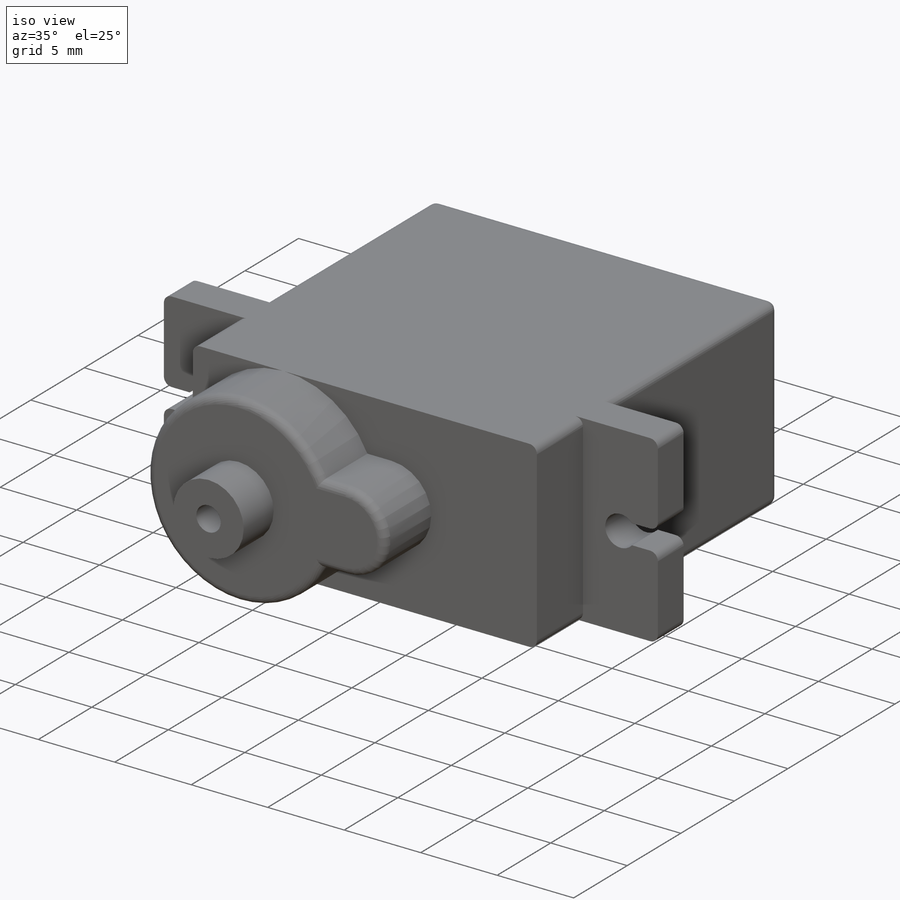
[diagram: iso view]
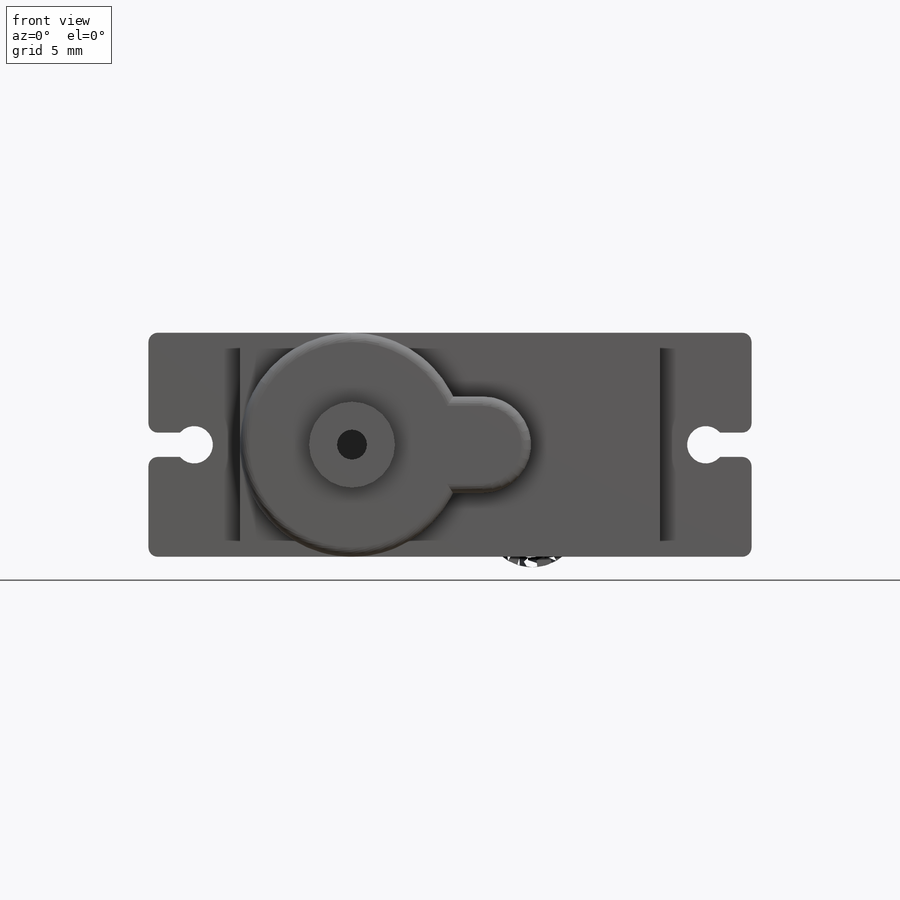
[diagram: front view]
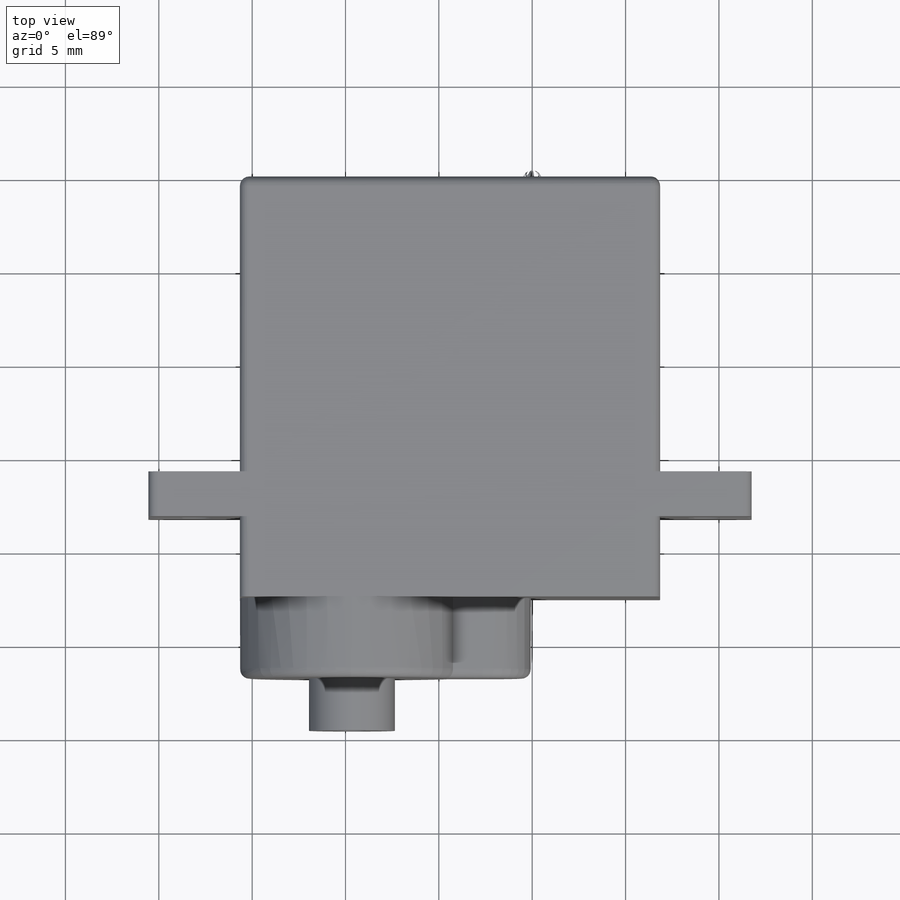
[diagram: top view]
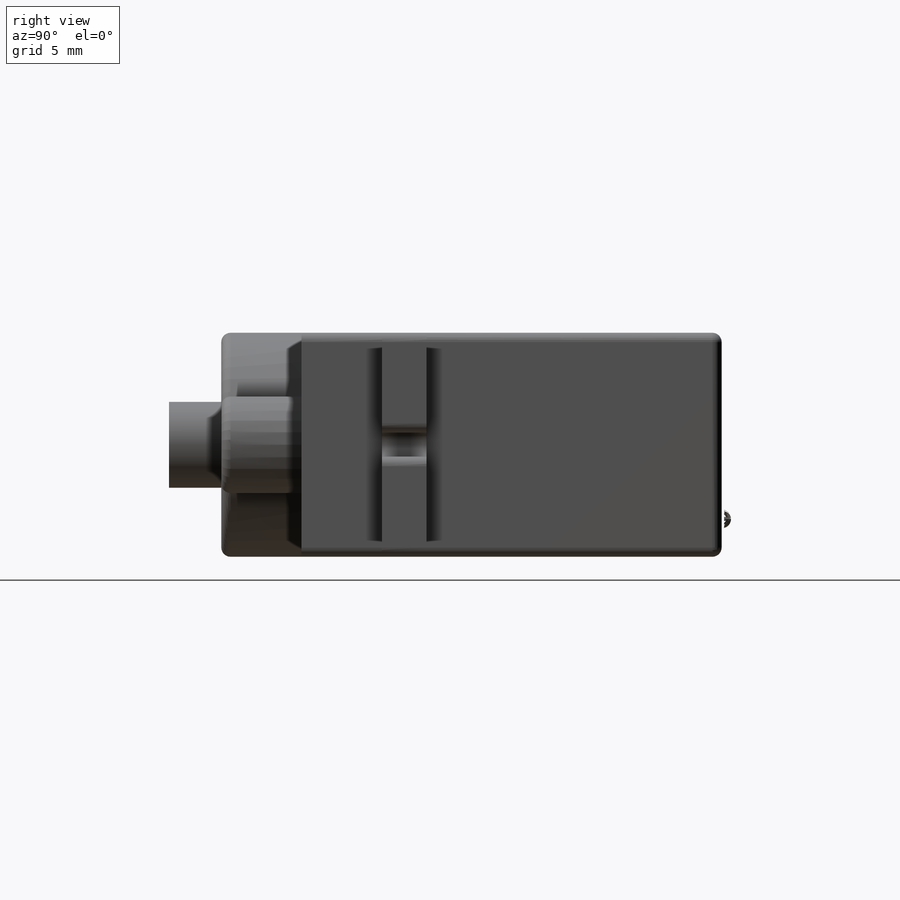
[diagram: right view]
SOLIDWORKS PART (.sldprt)
format: sldprt  version: not decoded by parser v0  size: 365,056 bytes
history: native  units: mm
features: sketch x8, extrude x5, cut_extrude x3, material x1, fillet x1 (+12 scaffold rows collapsed)
feature tree (30):
  scaffold x12  (default folders/planes/origin — collapsed)
  material  "ABS"
  sketch  "Sketch2"  dims[c1.D1=~11.233911mm c1.D2=~44.383155mm c2.D1=12.0mm c2.D2=22.5mm]
  extrude  "Boss-Extrude1"  Depth=22.5mm
  sketch  "Sketch3"  dims[c1.D1=12.0mm c1.D2=~4.073109mm c2.D1=4.3mm c2.D2=2.4mm]
  extrude  "Boss-Extrude2"  Depth=4.9mm
  sketch  "Sketch4"  dims[D1=2.0mm]
  cut_extrude  "Cut-Extrude1"  [1 undecoded]
  sketch  "Sketch5"
  extrude  "Boss-Extrude3"  Depth=4.3mm
  sketch  "Sketch6"  dims[D1=4.6mm]
  extrude  "Boss-Extrude4"  Depth=2.8mm
  sketch  "Sketch7"  dims[D1=1.6mm]
  cut_extrude  "Cut-Extrude2"  Depth=7mm
  sketch  "Sketch8"  dims[c1.D1=~0.705907mm c1.D2=~4.668208mm c2.D1=1.3mm c2.D2=~0.643464mm c2.D3=~4.280898mm c3.D2=1.3mm]
  cut_extrude  "Cut-Extrude3"  [1 undecoded]
  sketch  "Sketch9"  dims[D1=1.0mm D2=5.0mm]
  extrude  "Boss-Extrude6"  [1 undecoded]
  fillet  "Fillet1"  Radius=0.5mm
decode coverage: 13 of 17 modeling features carry decoded parameters
note: ~ marks probable driven/reference dimensions
note: 3 parameter values undecoded
summary: no parameter record found for 3 features
note: suppression state not decoded; provenance and decode notes live in map.json
